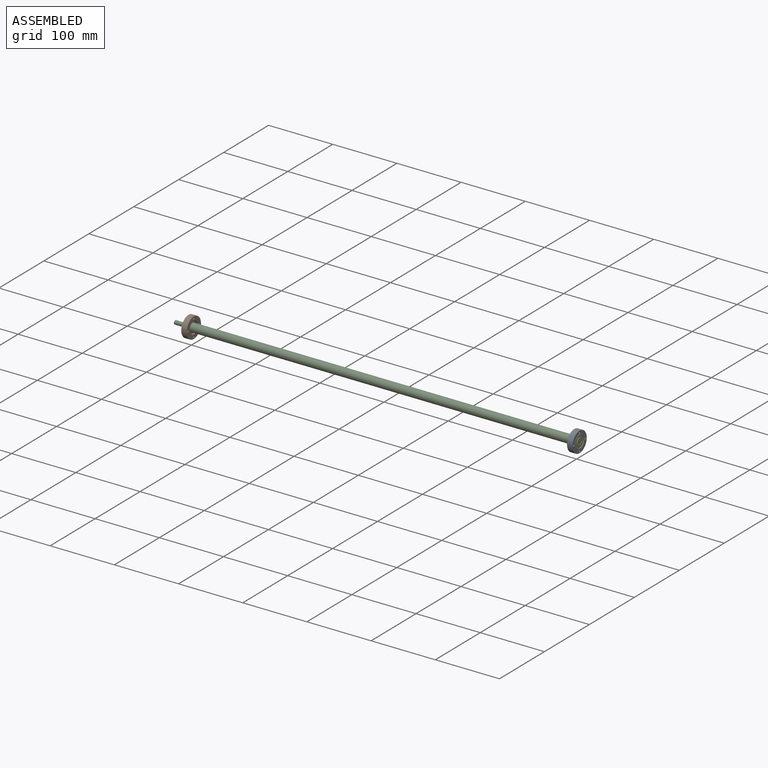
[diagram: assembled view]
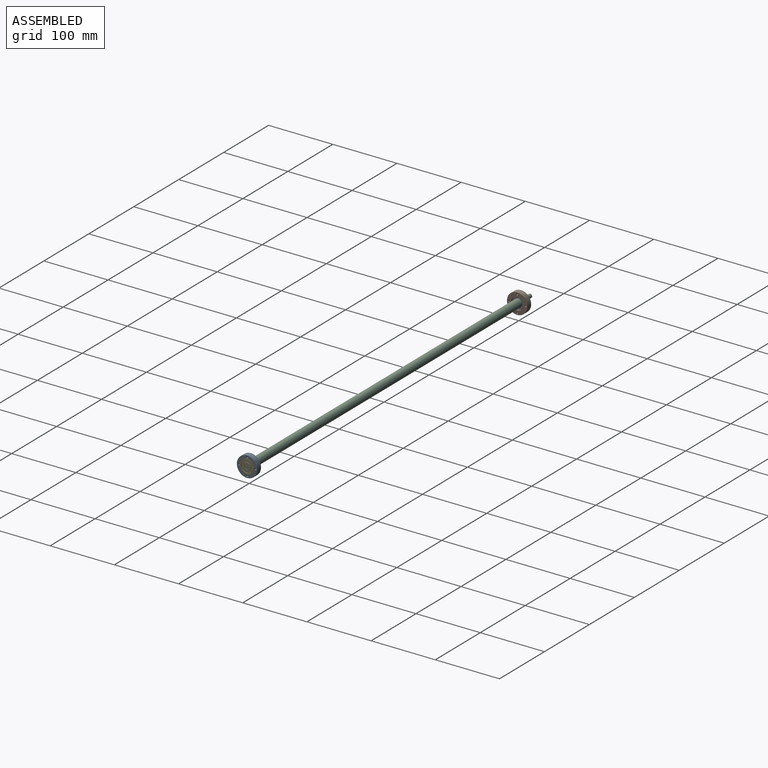
[diagram: assembled view, second angle]
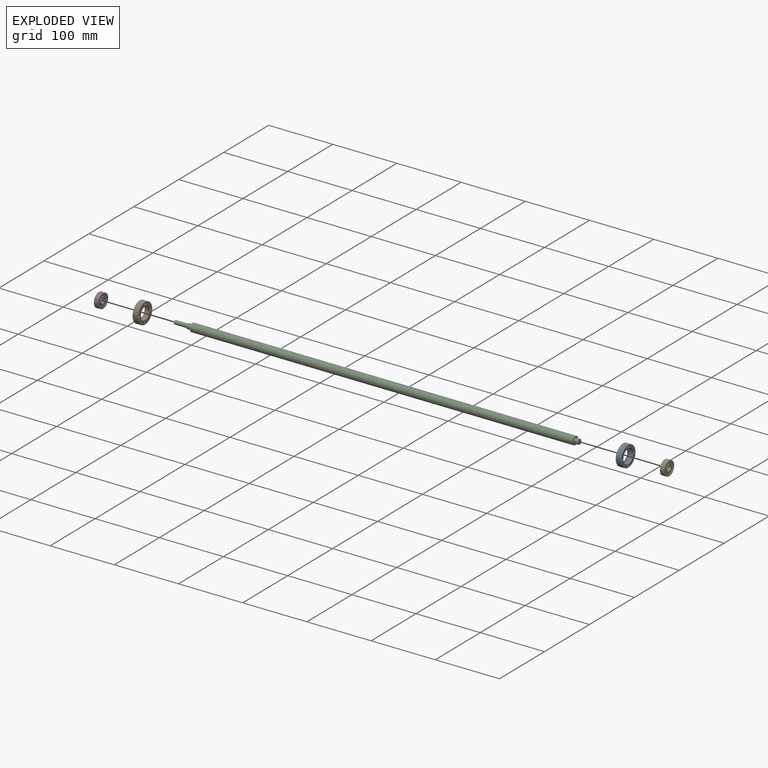
[diagram: exploded view]
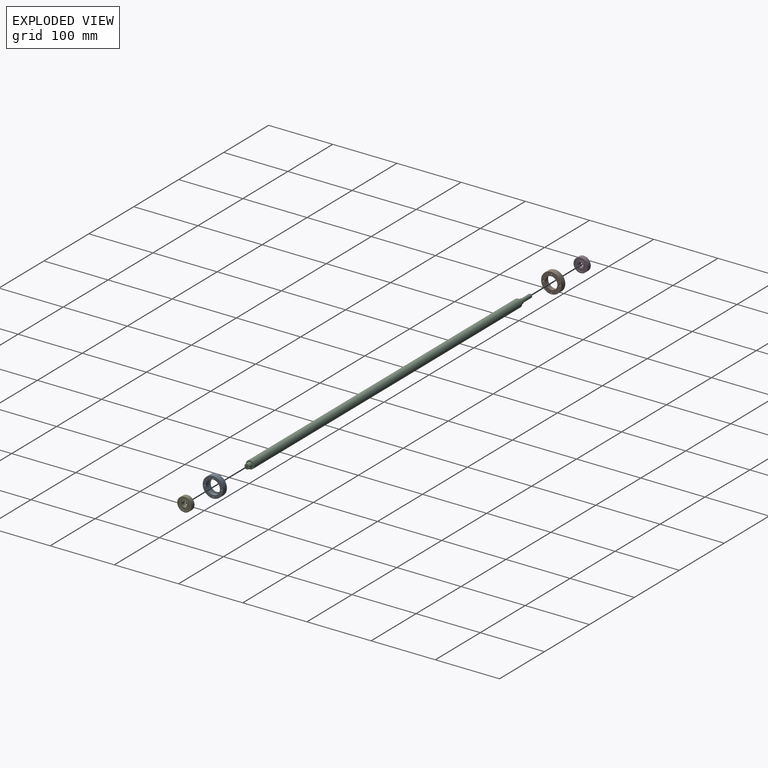
[diagram: exploded view, second angle]
ASSEMBLY  parts=5 mates=8
PART A: 10 faces, bbox 8.5x31.8x31.8 mm
  f0: cylinder r=15.88mm len=31.75mm, axis (1,0,0), area 847.8mm2, adj f1,f5
  f1: plane 31.75x31.75mm, normal (-1,0,0), area 386.8mm2, adj f0,f2,f6,f7,f8,f9
  f2: cylinder r=10.95mm len=21.9mm, axis (1,0,0), area 447.2mm2, adj f1,f3
  f3: plane 21.9x21.9mm, normal (-1,0,0), area 91.7mm2, adj f2,f4
  f4: cylinder r=9.53mm len=19.05mm, axis (1,0,0), area 119.7mm2, adj f3,f5
  f5: plane 31.75x31.75mm, normal (1,0,0), area 478.4mm2, adj f0,f4,f6,f7,f8,f9
  f6: cylinder r=1.5mm len=8.5mm, axis (1,0,0), area 80.1mm2, adj f1,f5
  f7: cylinder r=1.5mm len=8.5mm, axis (1,0,0), area 80.1mm2, adj f1,f5
  f8: cylinder r=1.5mm len=8.5mm, axis (1,0,0), area 80.1mm2, adj f1,f5
  f9: cylinder r=1.5mm len=8.5mm, axis (1,0,0), area 80.1mm2, adj f1,f5
PART B: same geometry as A
PART C: 9 faces, bbox 630x12.7x12.7 mm
  f0: plane 12.7x12.7mm, normal (-1,0,0), area 76.4mm2, adj f1,f8
  f1: cylinder r=4mm len=8mm, axis (-1,0,0), area 175.9mm2, adj f0,f2
  f2: plane 8x8mm, normal (-1,0,0), area 22mm2, adj f1,f3
  f3: cylinder r=3mm len=20mm, axis (-1,0,0), area 377mm2, adj f2,f4
  f4: plane 6x6mm, normal (-1,0,0), area 28.3mm2, adj f3
  f5: plane 8x8mm, normal (1,0,0), area 50.3mm2, adj f6
  f6: cylinder r=4mm len=8mm, axis (-1,0,0), area 163.4mm2, adj f5,f7
  f7: plane 12.7x12.7mm, normal (1,0,0), area 76.4mm2, adj f6,f8
  f8: cylinder r=6.35mm len=596.5mm, axis (-1,0,0), area 23799.3mm2, adj f0,f7
PART D: 12 faces, bbox 7x22x22 mm
  f0: cylinder r=11mm len=22mm, axis (-1,0,0), area 483.8mm2, adj f1,f11
  f1: plane 22x22mm, normal (-1,0,0), area 125.7mm2, adj f0,f2
  f2: cylinder r=9mm len=18mm, axis (-1,0,0), area 56.5mm2, adj f1,f3
  f3: plane 18x18mm, normal (-1,0,0), area 141.4mm2, adj f2,f4
  f4: cylinder r=6mm len=12mm, axis (-1,0,0), area 37.7mm2, adj f3,f5
  f5: plane 12x12mm, normal (-1,0,0), area 62.8mm2, adj f4,f6
  f6: cylinder r=4mm len=8mm, axis (-1,0,0), area 175.9mm2, adj f5,f7
  f7: plane 12x12mm, normal (1,0,0), area 62.8mm2, adj f6,f8
  f8: cylinder r=6mm len=12mm, axis (-1,0,0), area 37.7mm2, adj f7,f9
  f9: plane 18x18mm, normal (1,0,0), area 141.4mm2, adj f8,f10
  f10: cylinder r=9mm len=18mm, axis (-1,0,0), area 56.5mm2, adj f9,f11
  f11: plane 22x22mm, normal (1,0,0), area 125.7mm2, adj f0,f10
PART E: same geometry as D
PLACE A rot(axis=(0,1,0),180deg) t=(296.25,0,0)mm
PLACE B t=(-296.25,0,0)mm
PLACE C at identity
PLACE D t=(-301.75,0,0)mm
PLACE E rot(axis=(1,0,0),0deg) t=(301.75,0,0)mm
MATE planar A.f0 <-> E.f0  axis (1,0,0) through (298.25,0,0)mm
MATE cylindrical A.f0 <-> C.f1  axis (-1,0,0) through (301.5,0,0)mm
MATE cylindrical D.f0 <-> C.f1  axis (-1,0,0) through (-298.25,0,0)mm
MATE cylindrical B.f0 <-> C.f1  axis (1,0,0) through (-301.5,0,0)mm
MATE cylindrical E.f0 <-> C.f1  axis (-1,0,0) through (305.25,0,0)mm
MATE planar D.f0 <-> C.f1  axis (1,0,0) through (-298.25,0,0)mm
MATE planar E.f0 <-> C.f1  axis (-1,0,0) through (298.25,0,0)mm
MATE planar B.f0 <-> D.f0  axis (-1,0,0) through (-298.25,0,0)mm
